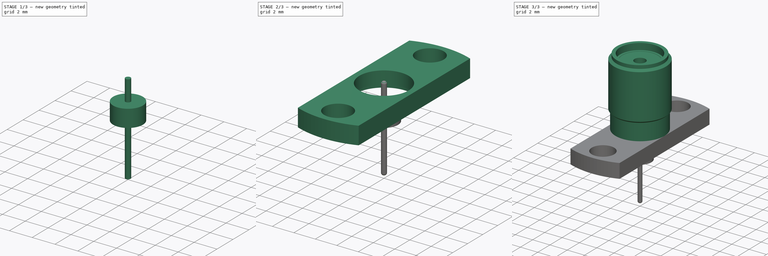
[diagram: build sequence overview — one tinted view per stage of 3, left to right]
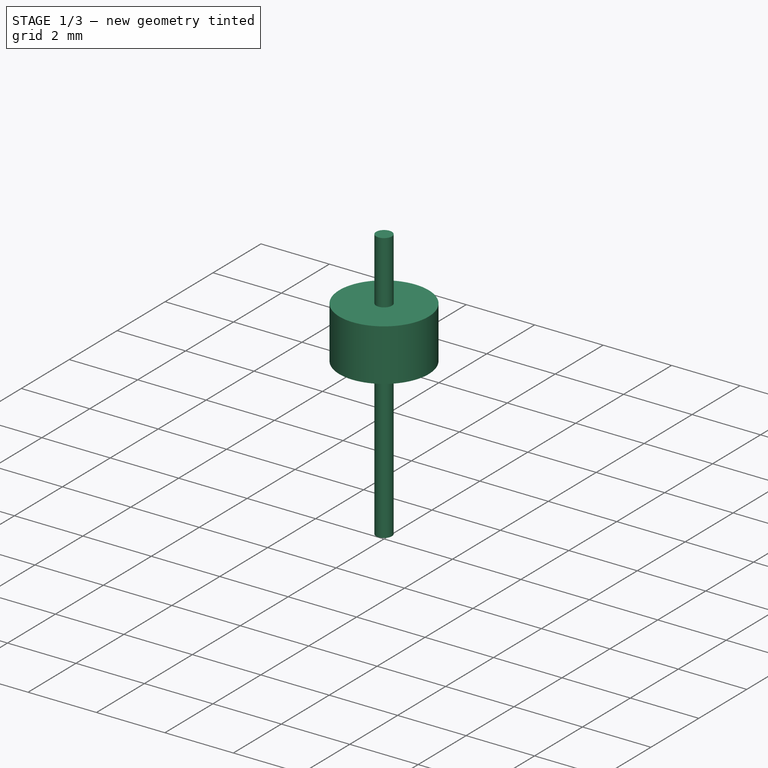
[diagram: stage 1 of 3 — iso view after this stage's code; geometry added in this stage tinted green]
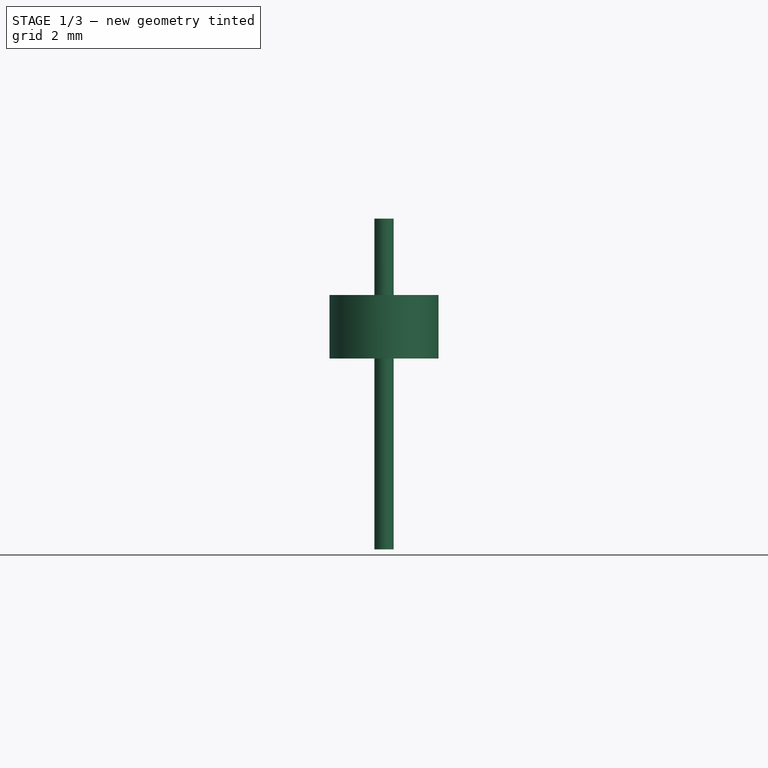
[diagram: stage 1 of 3 — front view after this stage's code; geometry added in this stage tinted green]
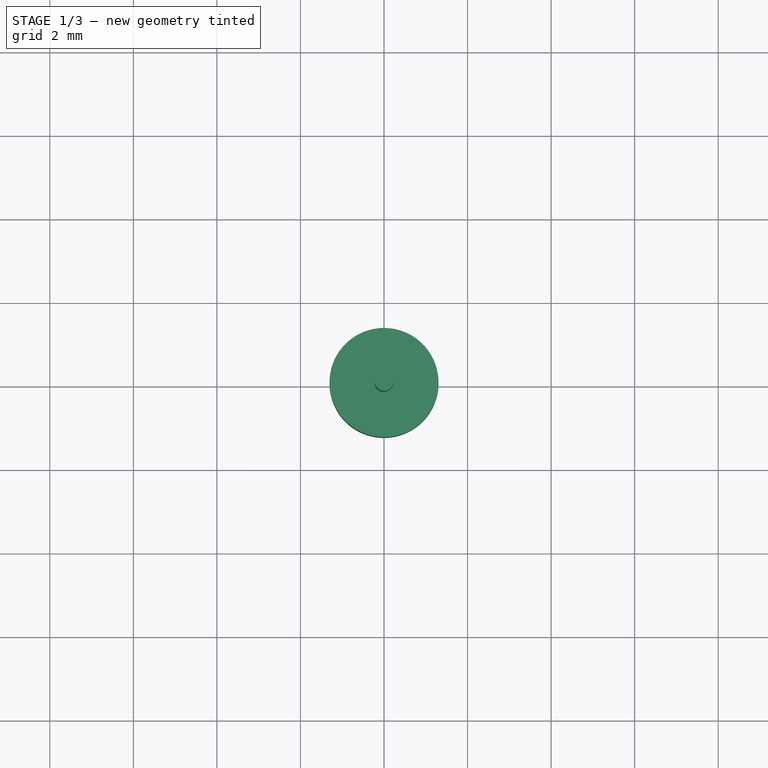
[diagram: stage 1 of 3 — top view after this stage's code; geometry added in this stage tinted green]
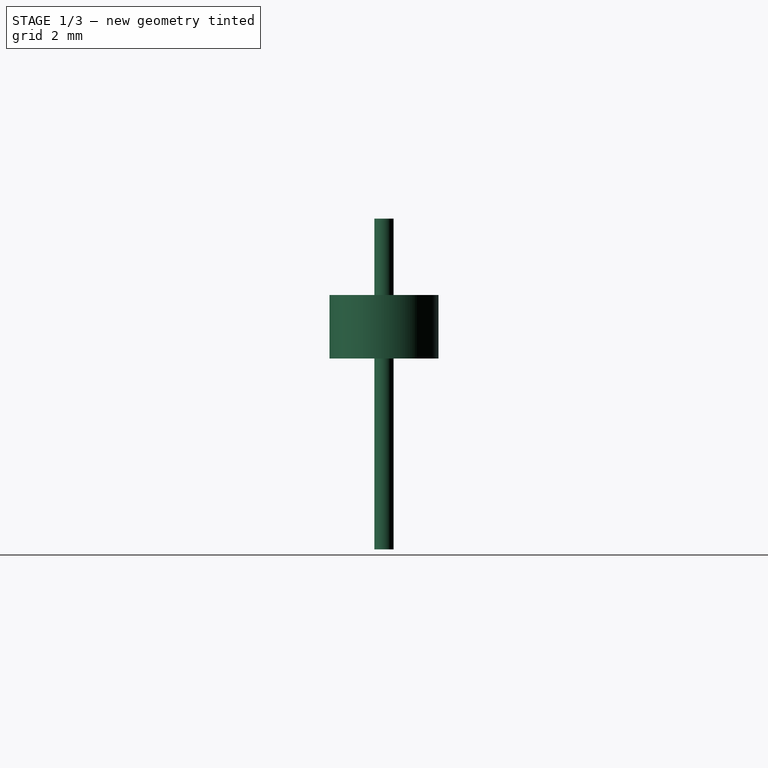
[diagram: stage 1 of 3 — right view after this stage's code; geometry added in this stage tinted green]
FCSTD DOCUMENT  (FreeCAD 0.19R23578 (Git))
Label: 142-1701-626
License: All rights reserved
LicenseURL: http://en.wikipedia.org/wiki/All_rights_reserved
objects: Sketcher::SketchObject×6, PartDesign::Pad×4, PartDesign::Body×2, PartDesign::Pocket×1, PartDesign::Revolution×1, PartDesign::Fillet×1
note: 22 computed .brp shape members not serialized (recipe doc carries the construction recipe); baked Part::Feature solids carry a one-line shape summary decoded from their .brp

FEATURE [PartDesign::Body] Body
  Group = -> [Sketch,Pad,Sketch001,Sketch002,Pocket,Revolution,Pad001]
  Origin = -> Origin
  Tip = -> Pad001
FEATURE [Sketcher::SketchObject] Sketch004
  sketch-geometry (2):
    g0: Circle CenterX=0 CenterY=0 CenterZ=0 NormalX=0 NormalY=0 NormalZ=1 AngleXU=0 Radius=1.305
    g1: Circle CenterX=0 CenterY=0 CenterZ=0 NormalX=0 NormalY=0 NormalZ=1 AngleXU=0 Radius=0.23
  constraints (4):
    c: Coincident(g0,g-1)
    c: Coincident(g1,g0)
    c: Radius(g1) = 0.23
    c: Radius(g0) = 1.305
FEATURE [Sketcher::SketchObject] Sketch005
  sketch-geometry (1):
    g0: Circle CenterX=0 CenterY=0 CenterZ=0 NormalX=0 NormalY=0 NormalZ=1 AngleXU=0 Radius=0.23
  constraints (2):
    c: Coincident(g0,g-1)
    c: Radius(g0) = 0.23
FEATURE [PartDesign::Pad] Pad002
  Direction = (1,1,1)
  Length = 1.52
  Length2 = 100
  Profile = -> Sketch004
  Reversed = true
  Type = 0
FEATURE [PartDesign::Pad] Pad003
  BaseFeature = -> Pad002
  Direction = (1,1,1)
  Length = 1.83
  Length2 = 6.09
  Profile = -> Sketch005
  Type = 4
  expr: Length2 = 1.52 + 4.57
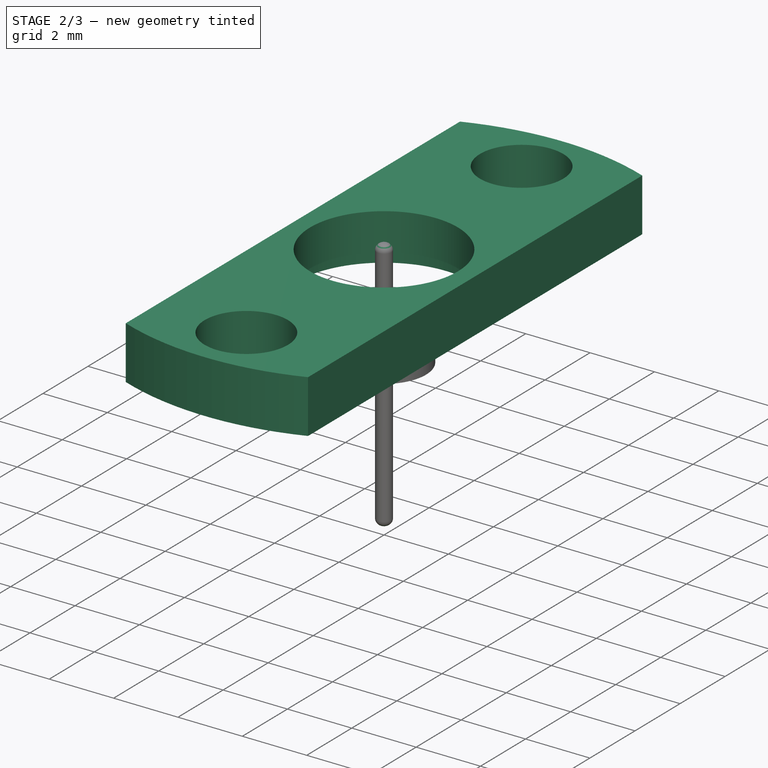
[diagram: stage 2 of 3 — iso view after this stage's code; geometry added in this stage tinted green]
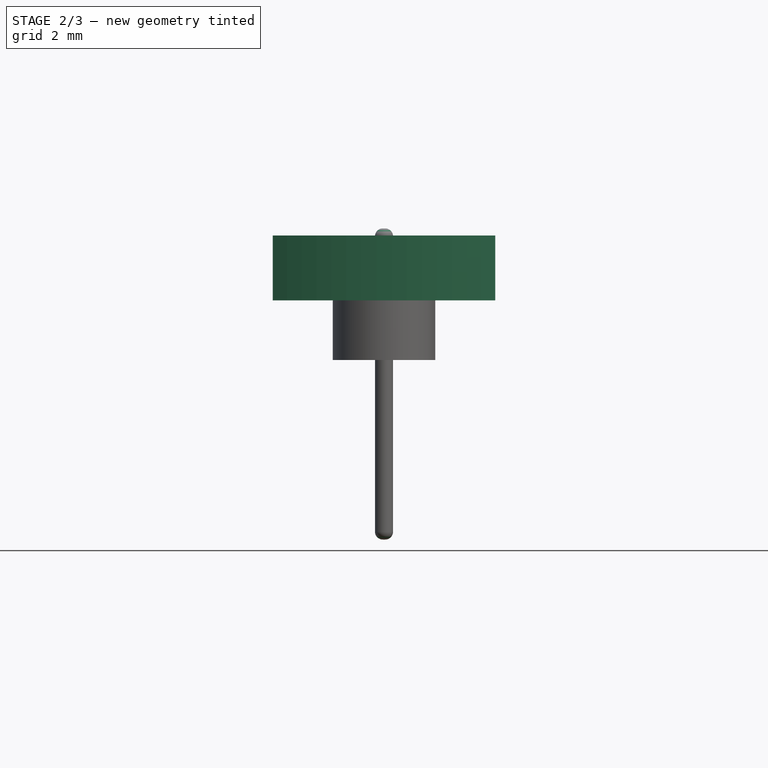
[diagram: stage 2 of 3 — front view after this stage's code; geometry added in this stage tinted green]
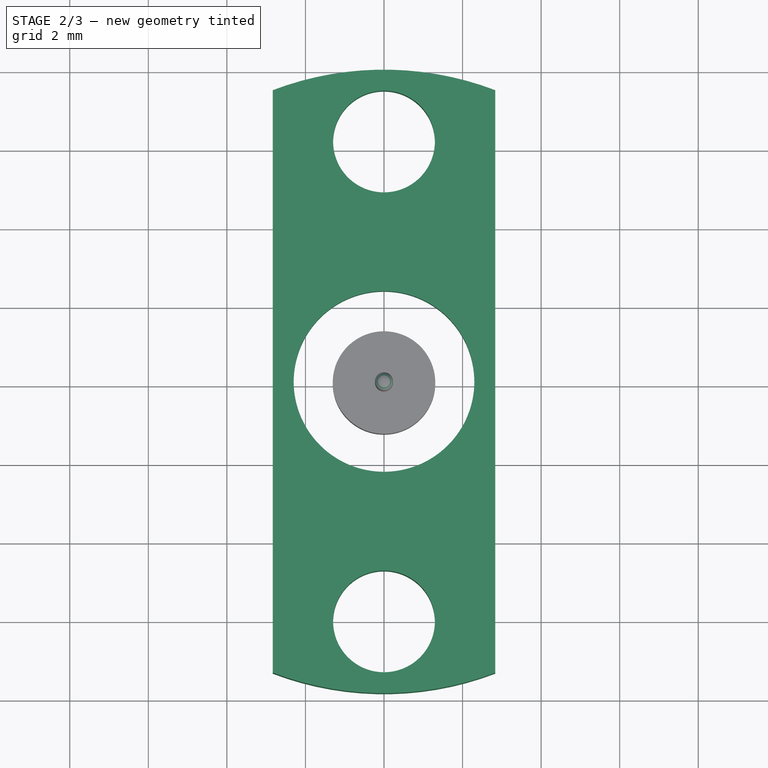
[diagram: stage 2 of 3 — top view after this stage's code; geometry added in this stage tinted green]
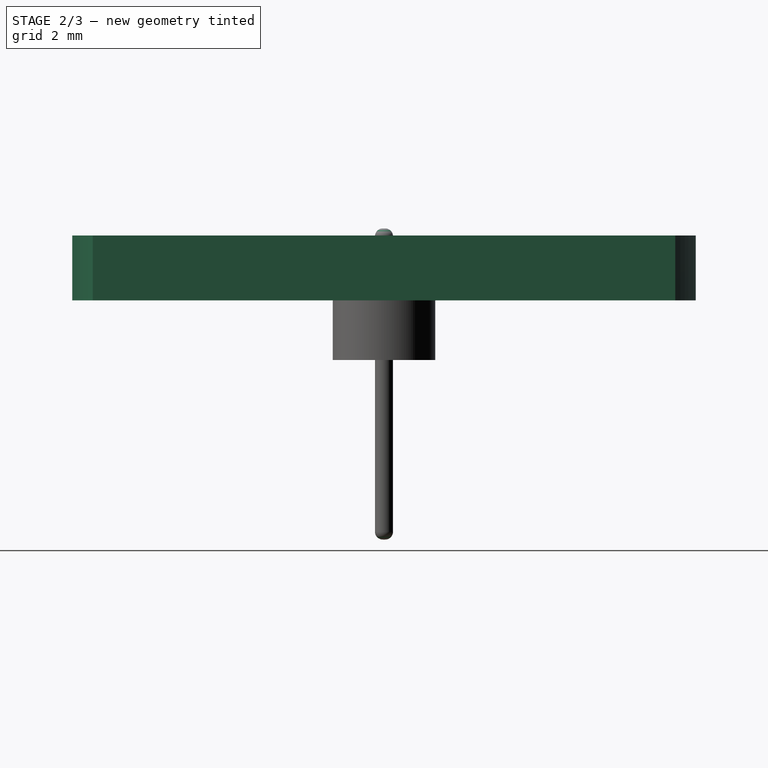
[diagram: stage 2 of 3 — right view after this stage's code; geometry added in this stage tinted green]
FEATURE [Sketcher::SketchObject] Sketch
  expr: Constraints[13] = 0.102 * 25.4mm / 2
  expr: Constraints[17] = 0.481 * 25.4
  expr: Constraints[9] = 0.625 * 25.4mm
  sketch-geometry (7):
    g0: LineSegment StartX=-2.8321 StartY=7.41506 StartZ=0 EndX=-2.8321 EndY=-7.41506 EndZ=0
    g1: LineSegment StartX=2.8321 StartY=7.41506 StartZ=0 EndX=2.8321 EndY=-7.41506 EndZ=0
    g2: ArcOfCircle CenterX=0 CenterY=0 CenterZ=0 NormalX=0 NormalY=0 NormalZ=1 AngleXU=0 Radius=7.9375 StartAngle=1.20596 EndAngle=1.93564
    g3: ArcOfCircle CenterX=0 CenterY=0 CenterZ=0 NormalX=0 NormalY=0 NormalZ=1 AngleXU=0 Radius=7.9375 StartAngle=4.34755 EndAngle=5.07723
    g4: Circle CenterX=0 CenterY=6.1087 CenterZ=0 NormalX=0 NormalY=0 NormalZ=1 AngleXU=0 Radius=1.2954
    g5: Circle CenterX=0 CenterY=-6.1087 CenterZ=0 NormalX=0 NormalY=0 NormalZ=1 AngleXU=0 Radius=1.2954
    g6: Circle CenterX=0 CenterY=0 CenterZ=0 NormalX=0 NormalY=0 NormalZ=1 AngleXU=0 Radius=2.3
  constraints (18):
    c: Coincident(g3,g-1)
    c: Coincident(g3,g2)
    c: Coincident(g2,g0)
    c: Coincident(g1,g2)
    c: Coincident(g3,g0)
    c: Coincident(g3,g1)
    c: Symmetric(g0,g1,g2)
    c: Vertical(g1)
    c: Vertical(g0)
    c: Distance(g1,g0) = 15.875
    c: DistanceX(g0,g1) = 5.6642
    c: PointOnObject(g4,g-2)
    c: Equal(g4,g5)
    c: Radius(g4) = 1.2954
    c: Coincident(g6,g2)
    c: Radius(g6) = 2.3
    c: Symmetric(g4,g5,g2)
    c: DistanceY(g5,g4) = 12.2174
FEATURE [PartDesign::Pad] Pad
  Direction = (1,1,1)
  Length = 1.651
  Length2 = 100
  Profile = -> Sketch
  Type = 0
  expr: Length = 25.4 * 0.065
FEATURE [Sketcher::SketchObject] Sketch001
  Placement = pos=(0,0,0) rot=(0.57735,0.57735,0.57735;2.0944rad)
  expr: Constraints[17] = 0.375 * 25.4
  expr: Constraints[16] = 0.212 * 25.4 / 2
  expr: Constraints[15] = 0.181 * 25.4 / 2
  sketch-geometry (10):
    g0: LineSegment StartX=2.82916 StartY=1.08681 StartZ=0 EndX=2.82916 EndY=3.57975 EndZ=0
    g1: LineSegment StartX=2.82916 StartY=3.57975 StartZ=0 EndX=3.00381 EndY=3.7544 EndZ=0
    g2: LineSegment StartX=3.00381 StartY=3.7544 StartZ=0 EndX=3.00381 EndY=8.93817 EndZ=0
    g3: LineSegment StartX=3.00381 StartY=8.93817 StartZ=0 EndX=2.6924 EndY=9.14224 EndZ=0
    g4: LineSegment StartX=2.6924 StartY=9.14224 StartZ=0 EndX=2.6924 EndY=9.525 EndZ=0
    g5: LineSegment StartX=2.6924 StartY=9.525 StartZ=0 EndX=2.2987 EndY=9.525 EndZ=0
    g6: LineSegment StartX=2.2987 StartY=9.525 StartZ=0 EndX=2.2987 EndY=8.77729 EndZ=0
    g7: LineSegment StartX=2.05 StartY=8.77729 StartZ=0 EndX=2.05 EndY=1.08681 EndZ=0
    g8: LineSegment StartX=2.05 StartY=1.08681 StartZ=0 EndX=2.82916 EndY=1.08681 EndZ=0
    g9: LineSegment StartX=2.2987 StartY=8.77729 StartZ=0 EndX=2.05 EndY=8.77729 EndZ=0
  constraints (23):
    c: Vertical(g0)
    c: Coincident(g1,g0)
    c: Coincident(g2,g1)
    c: Vertical(g2)
    c: Coincident(g3,g2)
    c: Coincident(g6,g5)
    c: Vertical(g7)
    c: Coincident(g8,g7)
    c: Coincident(g8,g0)
    c: Horizontal(g8)
    c: Horizontal(g5)
    c: Vertical(g6)
    c: Vertical(g4)
    c: Coincident(g3,g4)
    c: Coincident(g4,g5)
    c: DistanceX(g-1,g5) = 2.2987
    c: DistanceX(g-1,g4) = 2.6924
    c: DistanceY(g-1,g5) = 9.525
    c: Coincident(g9,g6)
    c: Horizontal(g9)
    c: Coincident(g7,g9)
    c: DistanceY(g-1,g7) = 1.08682
    c: DistanceX(g-1,g7) = 2.05
FEATURE [Sketcher::SketchObject] Sketch002
  expr: Constraints[3] = 5.48 / 2
  sketch-geometry (2):
    g0: Circle CenterX=0 CenterY=0 CenterZ=0 NormalX=0 NormalY=0 NormalZ=1 AngleXU=0 Radius=2.74
    g1: Circle CenterX=0 CenterY=0 CenterZ=0 NormalX=0 NormalY=0 NormalZ=1 AngleXU=0 Radius=1.91
  constraints (4):
    c: Coincident(g0,g-1)
    c: Coincident(g1,g0)
    c: Radius(g1) = 1.91
    c: Radius(g0) = 2.74
FEATURE [PartDesign::Pocket] Pocket
  BaseFeature = -> Pad
  Length = 0.5
  Length2 = 100
  Profile = -> Sketch002
  Reversed = true
  Type = 0
FEATURE [PartDesign::Fillet] Fillet
  Base = -> Pad003 [Edge1,Edge9]
  BaseFeature = -> Pad003
  Radius = 0.2
  SupportTransform = false
FEATURE [PartDesign::Body] Body001  label="142-1000-003"
  Group = -> [Sketch004,Sketch005,Pad002,Pad003,Fillet]
  Origin = -> Origin001
  Tip = -> Fillet
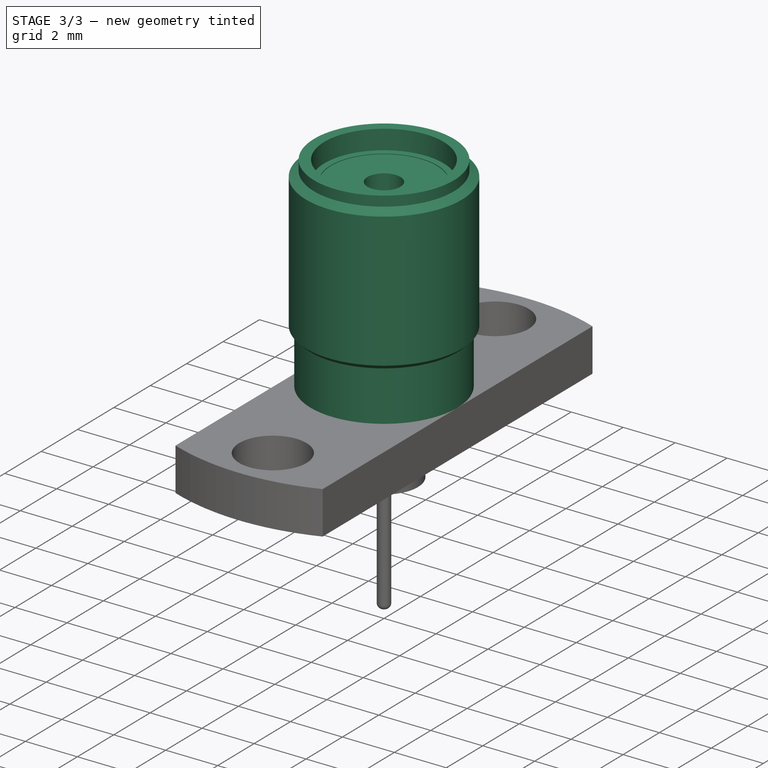
[diagram: stage 3 of 3 — iso view after this stage's code; geometry added in this stage tinted green]
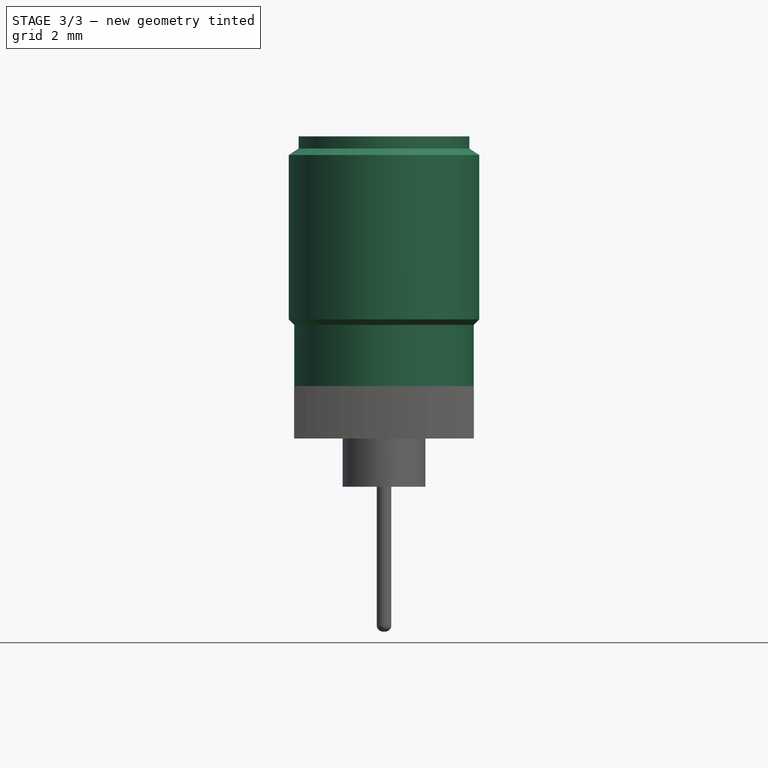
[diagram: stage 3 of 3 — front view after this stage's code; geometry added in this stage tinted green]
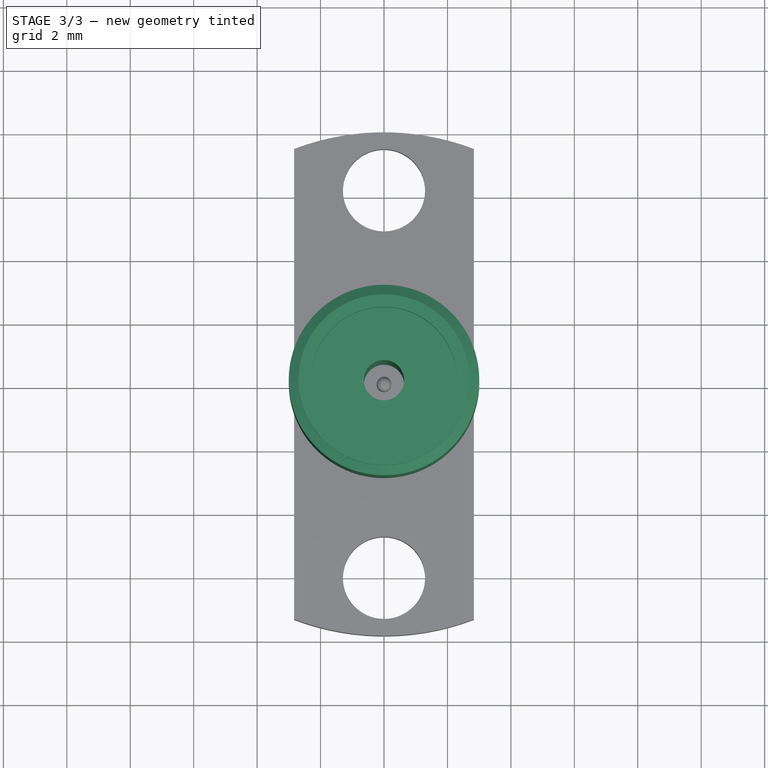
[diagram: stage 3 of 3 — top view after this stage's code; geometry added in this stage tinted green]
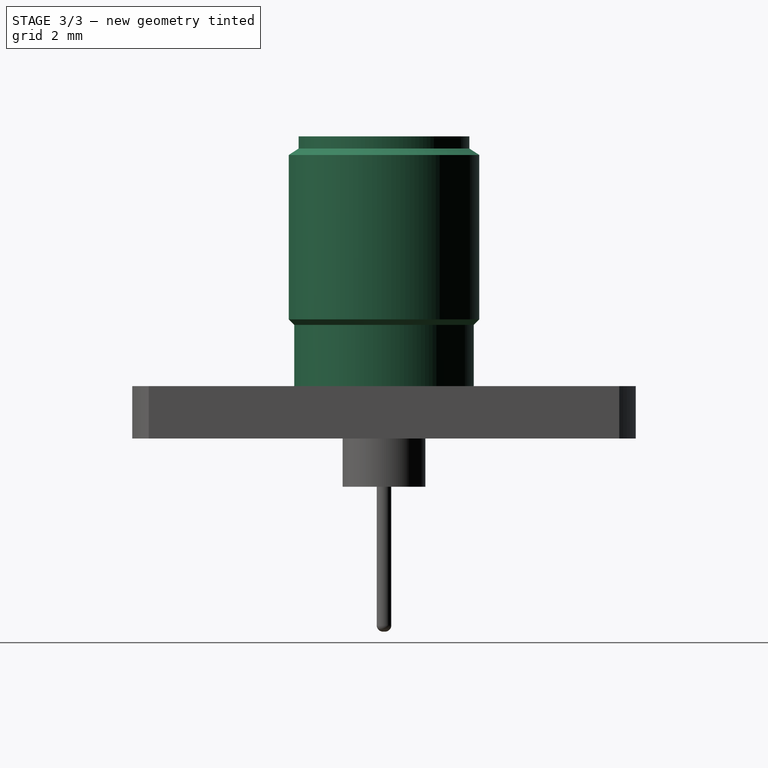
[diagram: stage 3 of 3 — right view after this stage's code; geometry added in this stage tinted green]
FEATURE [PartDesign::Revolution] Revolution
  Angle = 360
  Axis = (0,0,1)
  Base = (0,0,0)
  BaseFeature = -> Pocket
  Profile = -> Sketch001
  ReferenceAxis = -> Sketch001 [V_Axis]
  Reversed = true
FEATURE [Sketcher::SketchObject] Sketch003
  sketch-geometry (2):
    g0: Circle CenterX=0 CenterY=0 CenterZ=0 NormalX=0 NormalY=0 NormalZ=1 AngleXU=0 Radius=0.635
    g1: Circle CenterX=0 CenterY=0 CenterZ=0 NormalX=0 NormalY=0 NormalZ=1 AngleXU=0 Radius=2.05
  constraints (4):
    c: Coincident(g0,g-1)
    c: Coincident(g1,g0)
    c: Radius(g1) = 2.05
    c: Radius(g0) = 0.635
FEATURE [PartDesign::Pad] Pad001
  BaseFeature = -> Revolution
  Direction = (1,1,1)
  Length = 8.75
  Length2 = 100
  Profile = -> Sketch003
  Type = 0
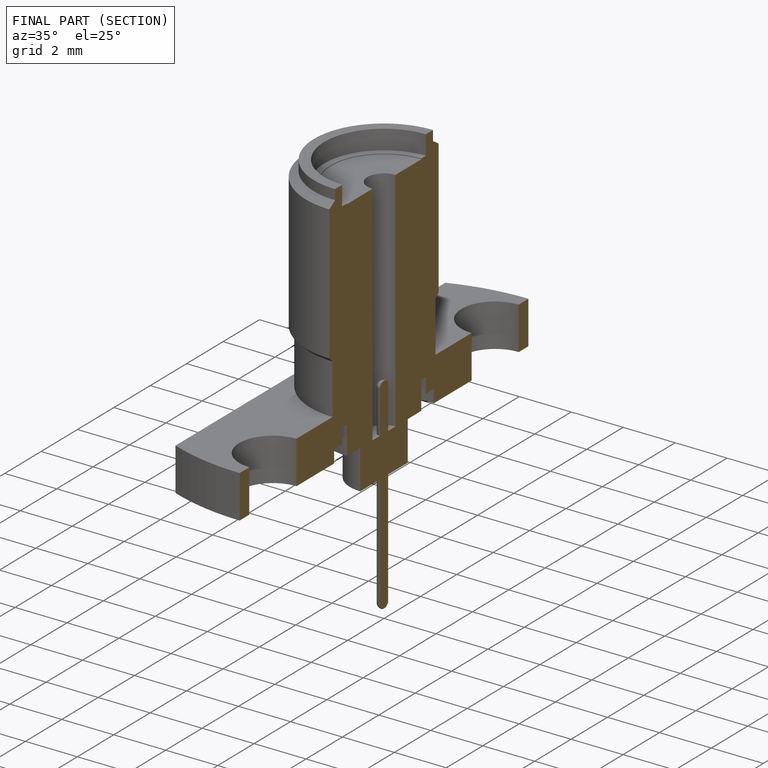
[diagram: finished part — half-section view (interior)]
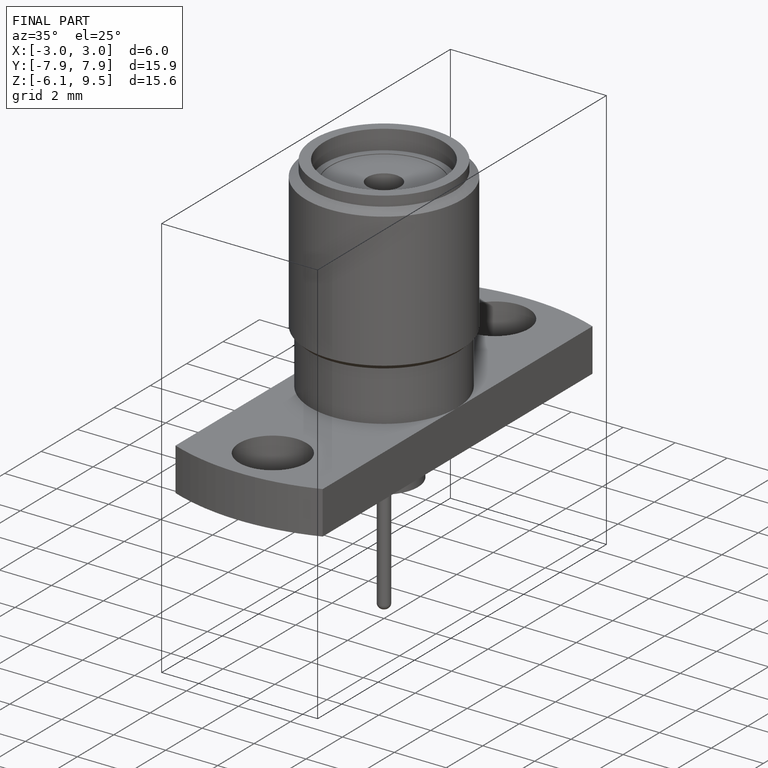
[diagram: finished part — iso view with bounding-box wireframe]
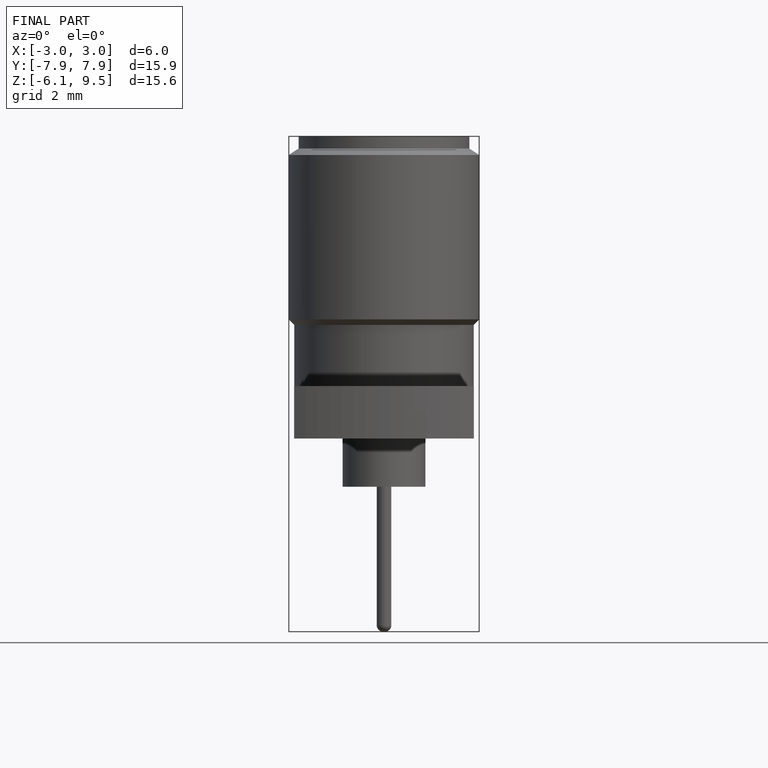
[diagram: finished part — front view with bounding-box wireframe]
